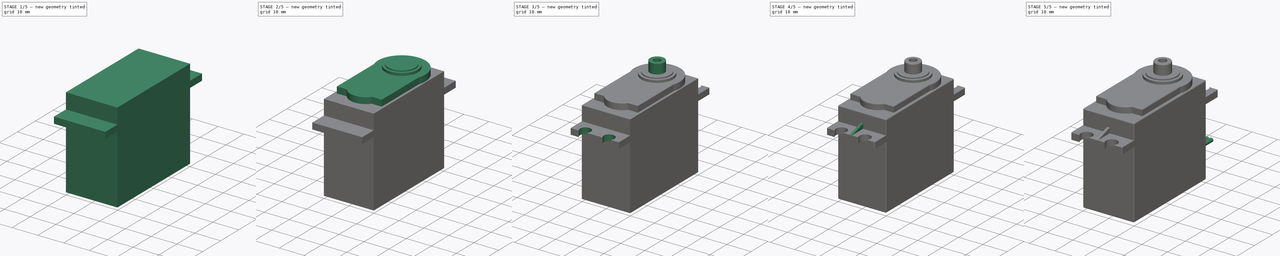
[diagram: build sequence overview — one tinted view per stage of 5, left to right]
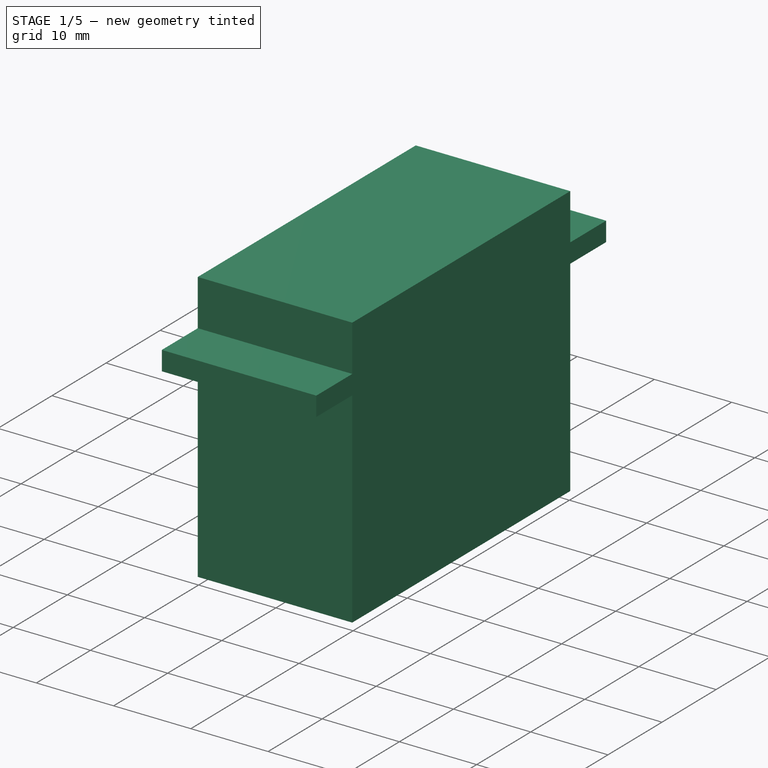
[diagram: stage 1 of 5 — iso view after this stage's code; geometry added in this stage tinted green]
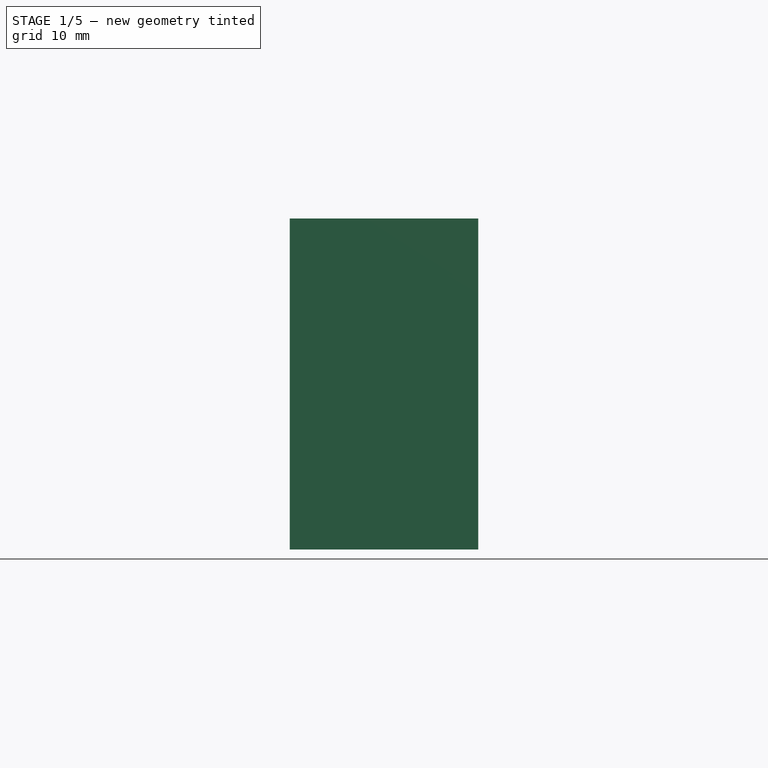
[diagram: stage 1 of 5 — front view after this stage's code; geometry added in this stage tinted green]
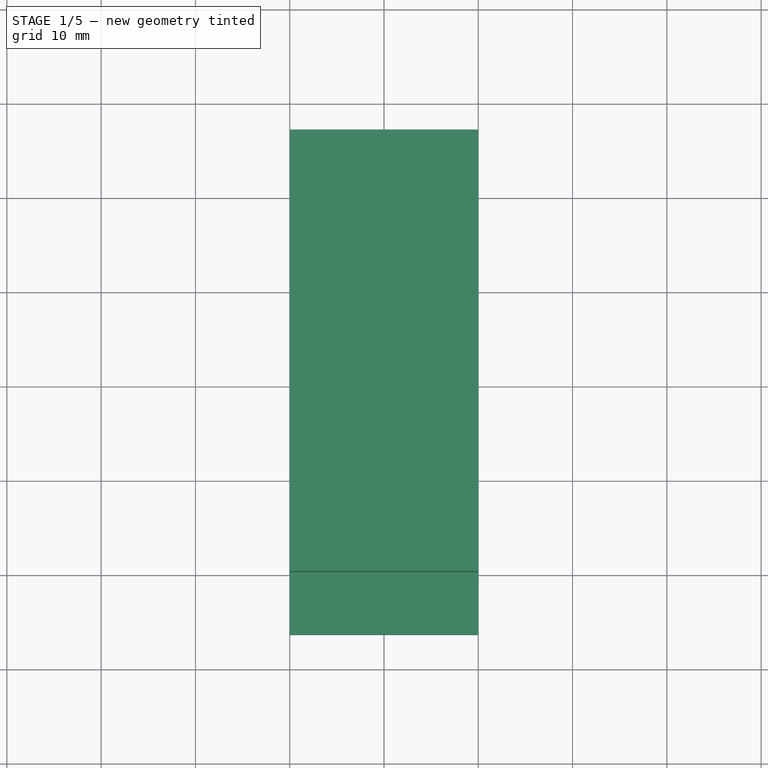
[diagram: stage 1 of 5 — top view after this stage's code; geometry added in this stage tinted green]
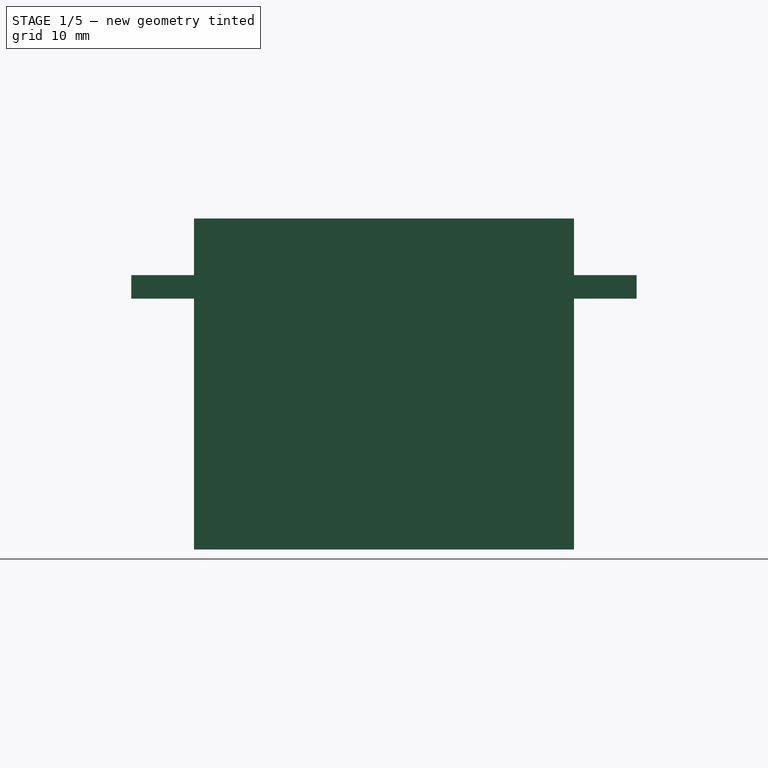
[diagram: stage 1 of 5 — right view after this stage's code; geometry added in this stage tinted green]
FCSTD DOCUMENT  (FreeCAD 0.18R4 (GitTag))
Label: MG996R
License: CreativeCommons Attribution-NonCommercial
LicenseURL: http://creativecommons.org/licenses/by-nc/4.0/
objects: Sketcher::SketchObject×15, PartDesign::Pad×11, PartDesign::Pocket×3, PartDesign::Fillet×1, PartDesign::Body×1
note: 45 computed .brp shape members not serialized (recipe doc carries the construction recipe); baked Part::Feature solids carry a one-line shape summary decoded from their .brp

FEATURE [Sketcher::SketchObject] Sketch
  MapMode = 5
  Support = -> [XY_Plane]
  sketch-geometry (4):
    g0: LineSegment StartX=-10 StartY=20.15 StartZ=0 EndX=10 EndY=20.15 EndZ=0
    g1: LineSegment StartX=10 StartY=20.15 StartZ=0 EndX=10 EndY=-20.15 EndZ=0
    g2: LineSegment StartX=10 StartY=-20.15 StartZ=0 EndX=-10 EndY=-20.15 EndZ=0
    g3: LineSegment StartX=-10 StartY=-20.15 StartZ=0 EndX=-10 EndY=20.15 EndZ=0
  constraints (10):
    c: Coincident(g0,g1)
    c: Coincident(g1,g2)
    c: Coincident(g2,g3)
    c: Coincident(g3,g0)
    c: Horizontal(g2)
    c: Vertical(g3)
    c: DistanceX(g0,g0) = 20
    c: DistanceY(g1,g1) = 40.3
    c: Symmetric(g0,g1,g-1)
    c: Symmetric(g0,g0,g-2)
FEATURE [PartDesign::Pad] Pad  label="Baseblock"
  Length = 26.6
  Length2 = 100
  Profile = -> Sketch
  Type = 0
FEATURE [Sketcher::SketchObject] Sketch001
  MapMode = 5
  Placement = pos=(0,0,26.6) rot=(0,0,1;0rad)
  Support = -> [Pad]
  sketch-geometry (4):
    g0: LineSegment StartX=-10 StartY=-26.8 StartZ=0 EndX=10 EndY=-26.8 EndZ=0
    g1: LineSegment StartX=10 StartY=-26.8 StartZ=0 EndX=10 EndY=26.8 EndZ=0
    g2: LineSegment StartX=10 StartY=26.8 StartZ=0 EndX=-10 EndY=26.8 EndZ=0
    g3: LineSegment StartX=-10 StartY=26.8 StartZ=0 EndX=-10 EndY=-26.8 EndZ=0
  constraints (10):
    c: Coincident(g0,g1)
    c: Coincident(g1,g2)
    c: Coincident(g2,g3)
    c: Coincident(g3,g0)
    c: Horizontal(g0)
    c: Vertical(g3)
    c: Symmetric(g1,g2,g-2)
    c: Symmetric(g1,g0,g-1)
    c: DistanceX(g2,g2) = 20
    c: DistanceY(g1,g1) = 53.6
FEATURE [PartDesign::Pad] Pad001
  BaseFeature = -> Pad
  Length = 2.5
  Length2 = 100
  Profile = -> Sketch001
  Type = 0
FEATURE [Sketcher::SketchObject] Sketch002
  MapMode = 5
  Placement = pos=(0,0,29.1) rot=(0,0,1;0rad)
  Support = -> [Pad001]
  sketch-geometry (4):
    g0: LineSegment StartX=-10 StartY=-20.15 StartZ=0 EndX=10 EndY=-20.15 EndZ=0
    g1: LineSegment StartX=10 StartY=-20.15 StartZ=0 EndX=10 EndY=20.15 EndZ=0
    g2: LineSegment StartX=10 StartY=20.15 StartZ=0 EndX=-10 EndY=20.15 EndZ=0
    g3: LineSegment StartX=-10 StartY=20.15 StartZ=0 EndX=-10 EndY=-20.15 EndZ=0
  constraints (10):
    c: Coincident(g0,g1)
    c: Coincident(g1,g2)
    c: Coincident(g2,g3)
    c: Coincident(g3,g0)
    c: Horizontal(g0)
    c: Vertical(g3)
    c: Symmetric(g1,g2,g-2)
    c: Symmetric(g1,g0,g-1)
    c: DistanceX(g2,g2) = 20
    c: DistanceY(g1,g1) = 40.3
FEATURE [PartDesign::Pad] Pad002
  BaseFeature = -> Pad001
  Length = 6
  Length2 = 100
  Profile = -> Sketch002
  Type = 0
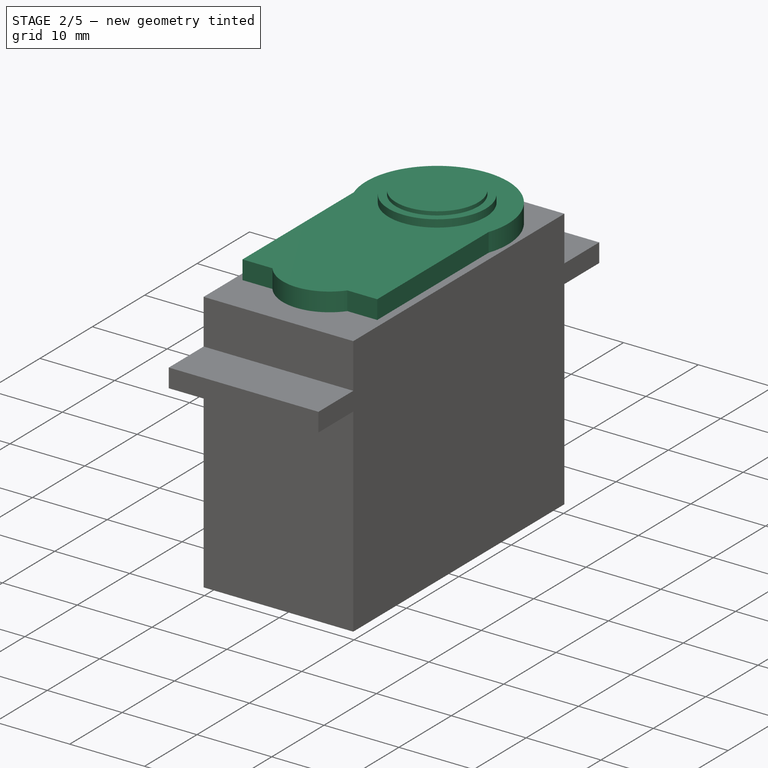
[diagram: stage 2 of 5 — iso view after this stage's code; geometry added in this stage tinted green]
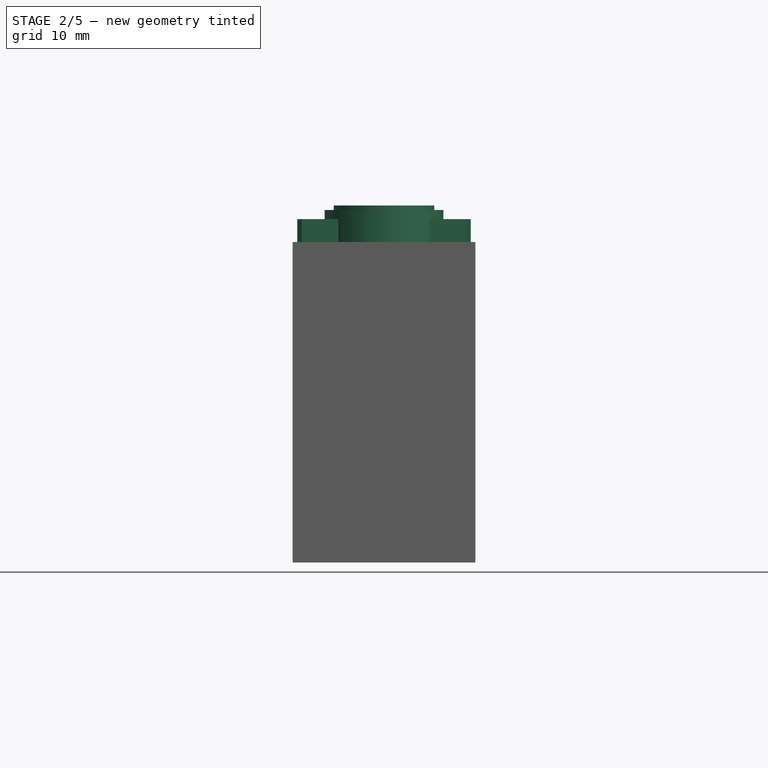
[diagram: stage 2 of 5 — front view after this stage's code; geometry added in this stage tinted green]
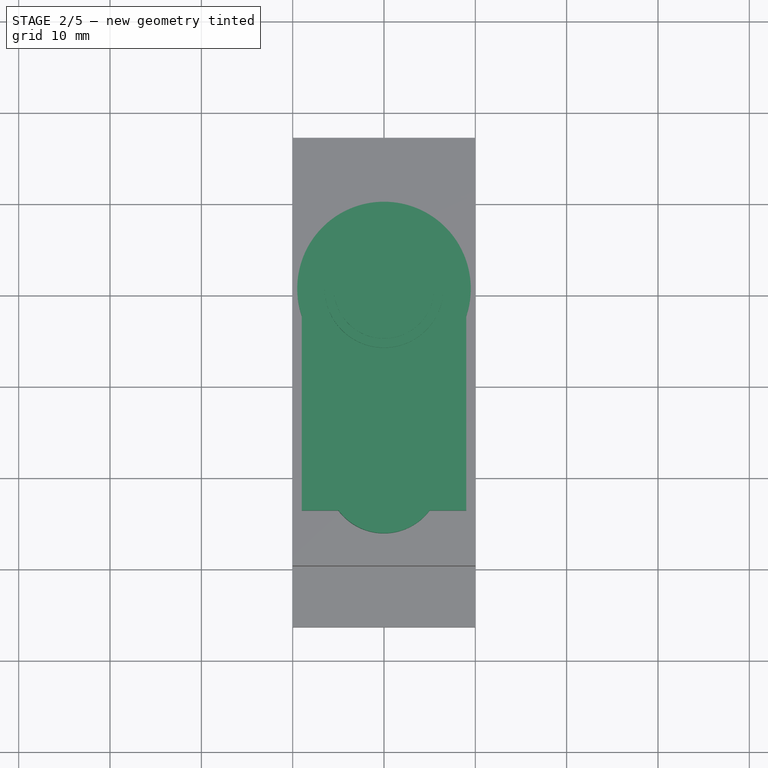
[diagram: stage 2 of 5 — top view after this stage's code; geometry added in this stage tinted green]
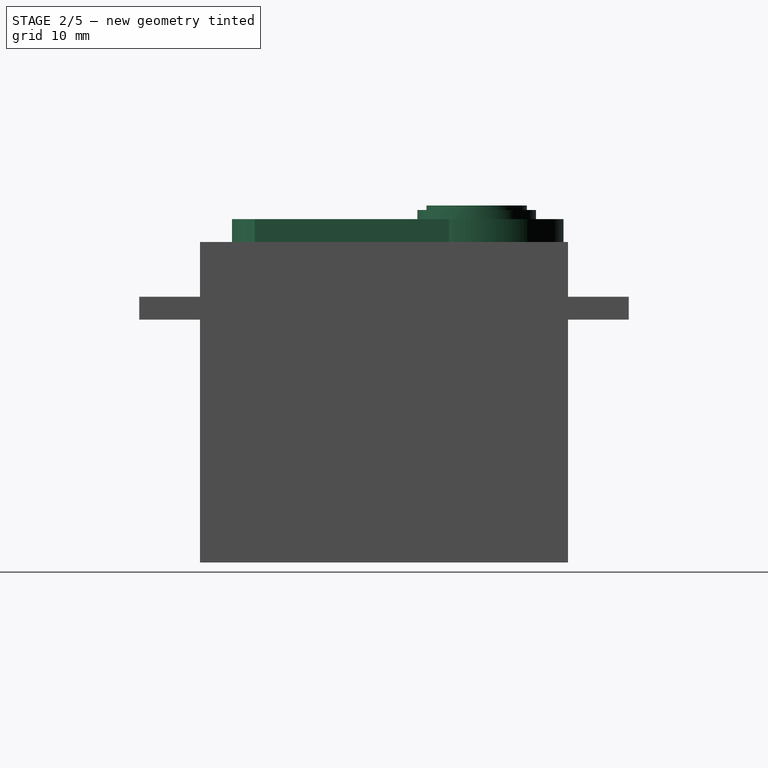
[diagram: stage 2 of 5 — right view after this stage's code; geometry added in this stage tinted green]
FEATURE [Sketcher::SketchObject] Sketch003
  ExternalGeometry = -> [Pad002]
  MapMode = 5
  Placement = pos=(0,0,35.1) rot=(0,0,1;0rad)
  Support = -> [Pad002]
  sketch-geometry (7):
    g0: ArcOfCircle CenterX=-3e-16 CenterY=10.15 CenterZ=0 NormalX=0 NormalY=0 NormalZ=1 AngleXU=0 Radius=9.5 StartAngle=5.9573 EndAngle=9.75066
    g1: LineSegment StartX=-9 StartY=7.10862 StartZ=0 EndX=-9 EndY=-14.15 EndZ=0
    g2: LineSegment StartX=-9 StartY=-14.15 StartZ=0 EndX=-5 EndY=-14.15 EndZ=0
    g3: LineSegment StartX=5 StartY=-14.15 StartZ=0 EndX=9 EndY=-14.15 EndZ=0
    g4: LineSegment StartX=9 StartY=-14.15 StartZ=0 EndX=9 EndY=7.10862 EndZ=0
    g5: ArcOfCircle CenterX=-3e-16 CenterY=-10.4 CenterZ=0 NormalX=0 NormalY=0 NormalZ=1 AngleXU=0 Radius=6.25 StartAngle=3.78509 EndAngle=5.63968
    g6: LineSegment [constr] StartX=0 StartY=-20.15 StartZ=0 EndX=0 EndY=-16.65 EndZ=0
  constraints (22):
    c: Symmetric(g0,g0,g-2)
    c: Coincident(g1,g0)
    c: Vertical(g1)
    c: Coincident(g2,g1)
    c: Horizontal(g2)
    c: Horizontal(g3)
    c: Coincident(g4,g3)
    c: Coincident(g4,g0)
    c: Vertical(g4)
    c: Symmetric(g2,g3,g-2)
    c: Coincident(g5,g2)
    c: Coincident(g5,g3)
    c: DistanceY(g-3,g3) = 6
    c: DistanceY(g0,g-4) = 10
    c: Radius(g0) = 9.5
    c: DistanceX(g0,g0) = 18
    c: PointOnObject(g6,g-3)
    c: PointOnObject(g6,g5)
    c: Vertical(g6)
    c: DistanceY(g6,g6) = 3.5
    c: DistanceX(g2,g3) = 10
    c: PointOnObject(g6,g-2)
FEATURE [PartDesign::Pad] Pad003
  BaseFeature = -> Pad002
  Length = 2.5
  Length2 = 100
  Profile = -> Sketch003
  Type = 0
FEATURE [Sketcher::SketchObject] Sketch004
  ExternalGeometry = -> [Pad003]
  MapMode = 5
  Placement = pos=(0,0,37.6) rot=(0,0,1;0rad)
  Support = -> [Pad003]
  sketch-geometry (1):
    g0: Circle CenterX=-3e-16 CenterY=10.15 CenterZ=0 NormalX=0 NormalY=0 NormalZ=1 AngleXU=0 Radius=6.5
  constraints (2):
    c: Coincident(g0,g-3)
    c: Radius(g0) = 6.5
FEATURE [PartDesign::Pad] Pad004
  BaseFeature = -> Pad003
  Length = 1
  Length2 = 100
  Profile = -> Sketch004
  Type = 0
FEATURE [Sketcher::SketchObject] Sketch005
  ExternalGeometry = -> [Pad004]
  MapMode = 5
  Placement = pos=(0,0,38.6) rot=(0,0,1;0rad)
  Support = -> [Pad004]
  sketch-geometry (1):
    g0: Circle CenterX=0 CenterY=10.15 CenterZ=0 NormalX=0 NormalY=0 NormalZ=1 AngleXU=0 Radius=5.5
  constraints (2):
    c: Coincident(g0,g-3)
    c: Radius(g0) = 5.5
FEATURE [PartDesign::Pad] Pad005
  BaseFeature = -> Pad004
  Length = 0.5
  Length2 = 100
  Profile = -> Sketch005
  Type = 0
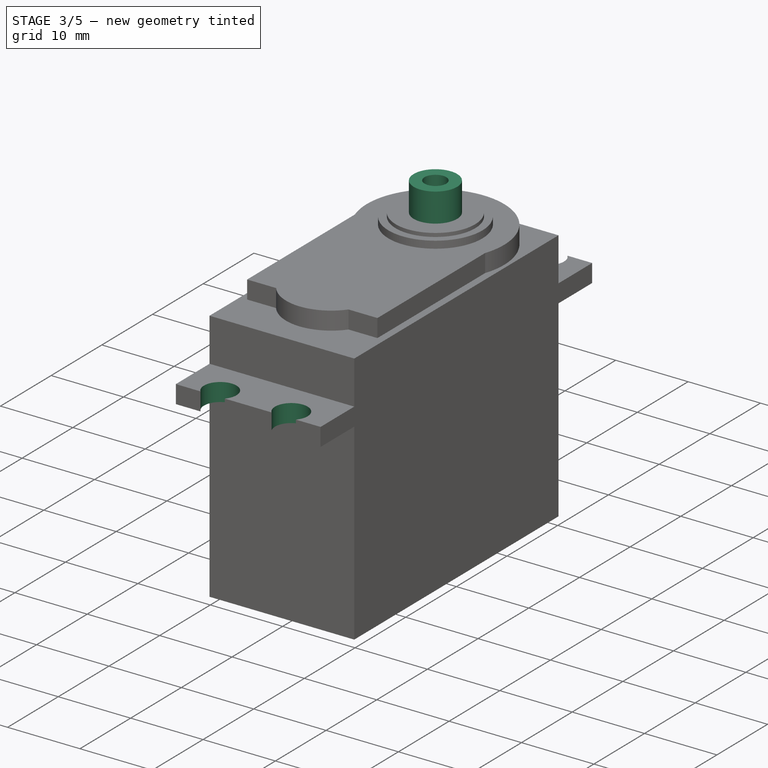
[diagram: stage 3 of 5 — iso view after this stage's code; geometry added in this stage tinted green]
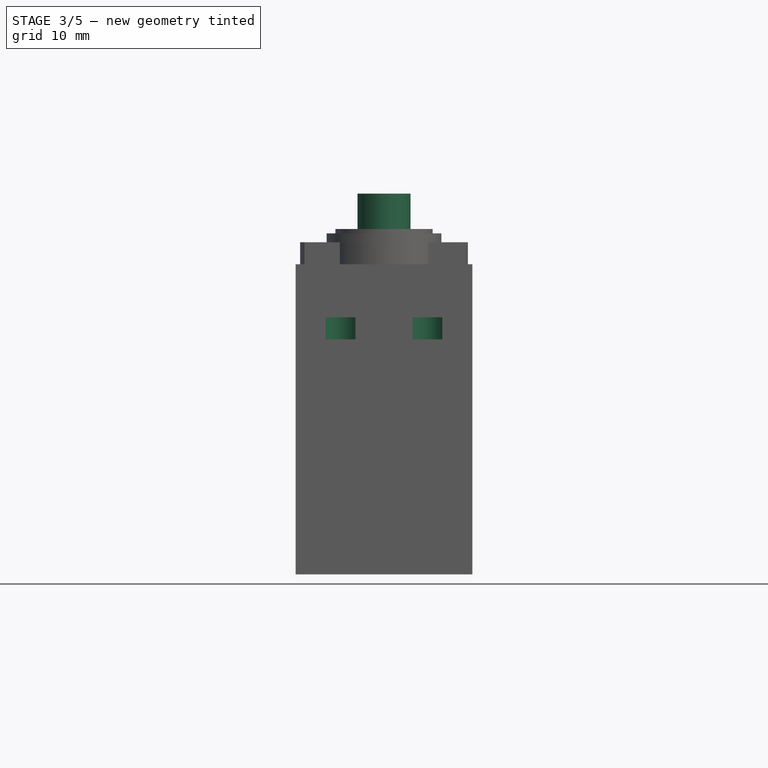
[diagram: stage 3 of 5 — front view after this stage's code; geometry added in this stage tinted green]
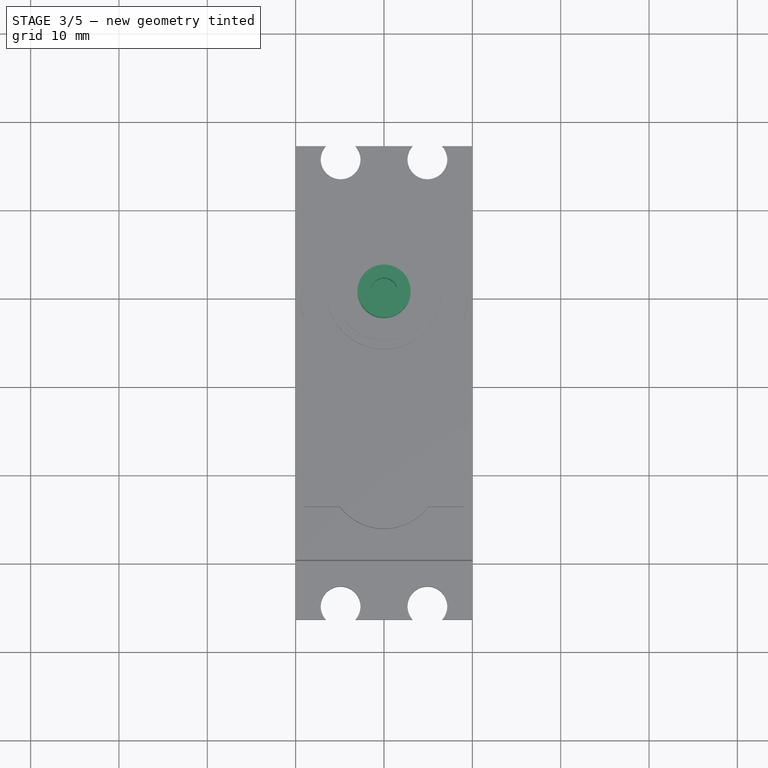
[diagram: stage 3 of 5 — top view after this stage's code; geometry added in this stage tinted green]
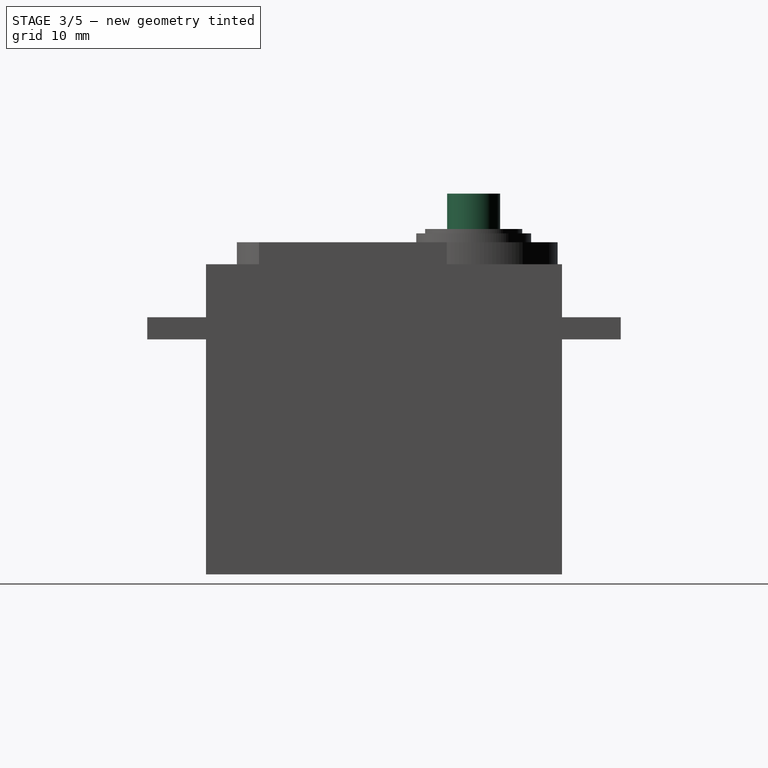
[diagram: stage 3 of 5 — right view after this stage's code; geometry added in this stage tinted green]
FEATURE [Sketcher::SketchObject] Sketch006
  ExternalGeometry = -> [Pad005]
  MapMode = 5
  Placement = pos=(0,0,39.1) rot=(0,0,1;0rad)
  Support = -> [Pad005]
  sketch-geometry (1):
    g0: Circle CenterX=0 CenterY=10.15 CenterZ=0 NormalX=0 NormalY=0 NormalZ=1 AngleXU=0 Radius=3
  constraints (2):
    c: Coincident(g0,g-3)
    c: Radius(g0) = 3
FEATURE [PartDesign::Pad] Pad006
  BaseFeature = -> Pad005
  Length = 4
  Length2 = 100
  Profile = -> Sketch006
  Type = 0
FEATURE [Sketcher::SketchObject] Sketch007
  ExternalGeometry = -> [Pad006]
  MapMode = 5
  Placement = pos=(0,0,43.1) rot=(0,0,1;0rad)
  Support = -> [Pad006]
  sketch-geometry (1):
    g0: Circle CenterX=0 CenterY=10.15 CenterZ=0 NormalX=0 NormalY=0 NormalZ=1 AngleXU=0 Radius=1.5
  constraints (2):
    c: Coincident(g0,g-3)
    c: Radius(g0) = 1.5
FEATURE [PartDesign::Pocket] Pocket
  BaseFeature = -> Pad006
  Length = 5
  Length2 = 100
  Profile = -> Sketch007
  Type = 0
FEATURE [Sketcher::SketchObject] Sketch008
  MapMode = 5
  Placement = pos=(0,0,29.1) rot=(0,0,1;0rad)
  Support = -> [Pocket]
  sketch-geometry (4):
    g0: Circle CenterX=-4.91157 CenterY=25.3 CenterZ=0 NormalX=0 NormalY=0 NormalZ=1 AngleXU=0 Radius=2.25
    g1: Circle CenterX=4.91157 CenterY=25.3 CenterZ=0 NormalX=0 NormalY=0 NormalZ=1 AngleXU=0 Radius=2.25
    g2: Circle CenterX=-4.91157 CenterY=-25.3 CenterZ=0 NormalX=0 NormalY=0 NormalZ=1 AngleXU=0 Radius=2.25
    g3: Circle CenterX=4.91157 CenterY=-25.3 CenterZ=0 NormalX=0 NormalY=0 NormalZ=1 AngleXU=0 Radius=2.25
  constraints (8):
    c: Equal(g3,g2)
    c: Equal(g2,g1)
    c: Equal(g1,g0)
    c: Radius(g1) = 2.25
    c: Symmetric(g1,g0,g-2)
    c: Symmetric(g3,g2,g-2)
    c: Symmetric(g3,g1,g-1)
    c: DistanceY(g3,g1) = 50.6
FEATURE [PartDesign::Pocket] Pocket001
  BaseFeature = -> Pocket
  Length = 5
  Length2 = 100
  Profile = -> Sketch008
  Type = 0
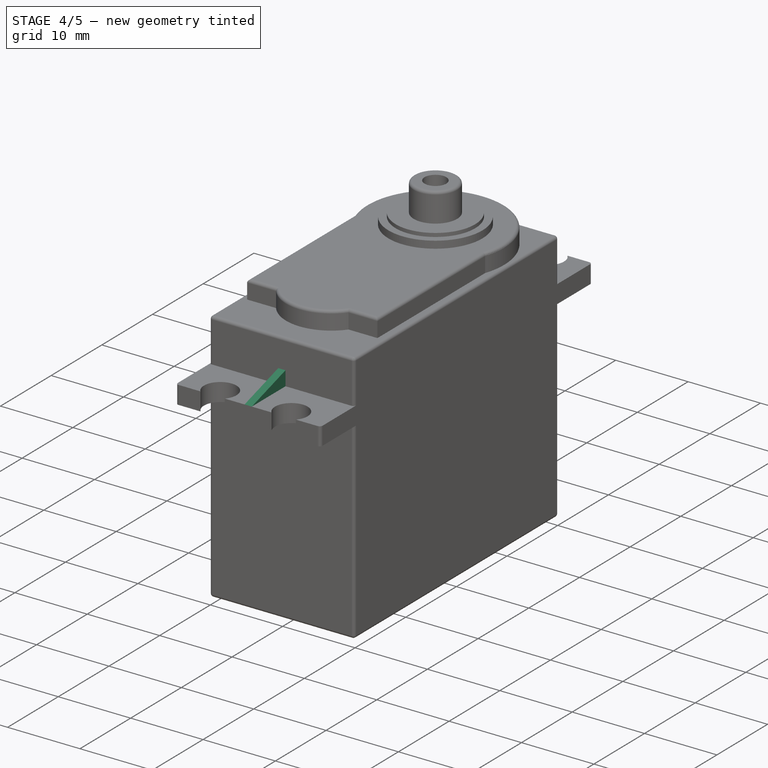
[diagram: stage 4 of 5 — iso view after this stage's code; geometry added in this stage tinted green]
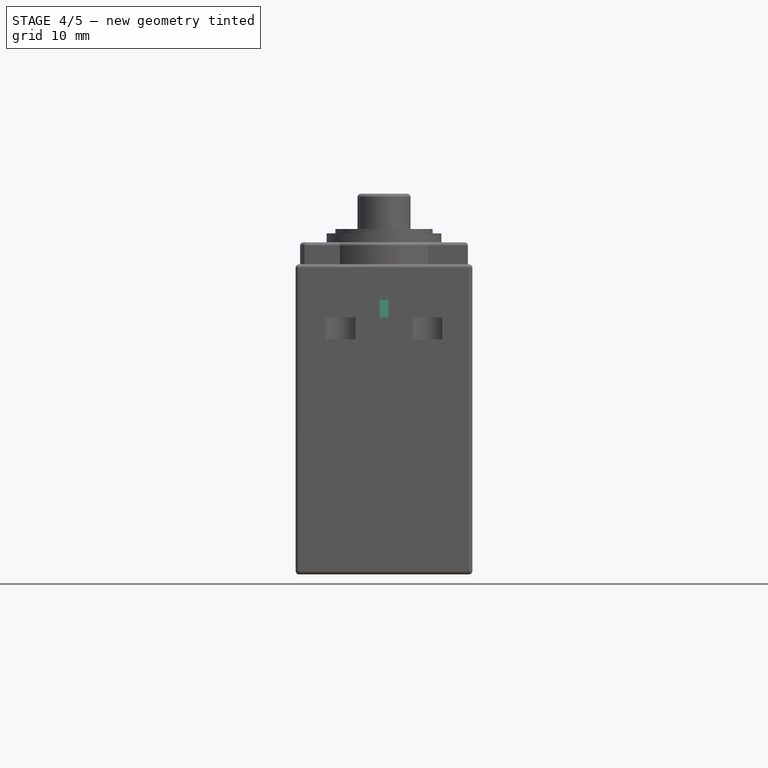
[diagram: stage 4 of 5 — front view after this stage's code; geometry added in this stage tinted green]
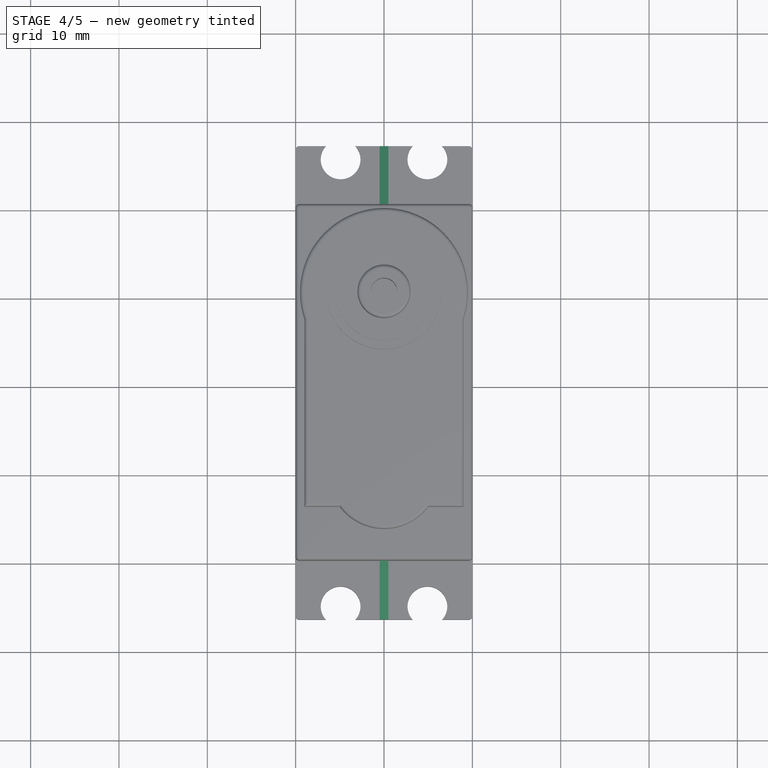
[diagram: stage 4 of 5 — top view after this stage's code; geometry added in this stage tinted green]
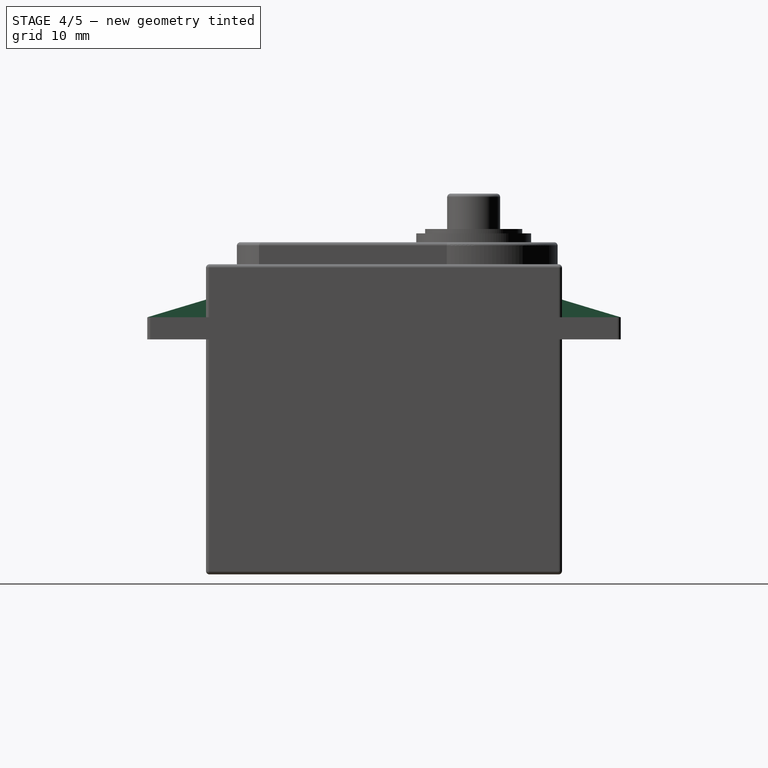
[diagram: stage 4 of 5 — right view after this stage's code; geometry added in this stage tinted green]
FEATURE [Sketcher::SketchObject] Sketch009
  MapMode = 5
  Placement = pos=(0,0,29.1) rot=(0,0,1;0rad)
  Support = -> [Pocket001]
  sketch-geometry (8):
    g0: LineSegment StartX=-0.5 StartY=26.8 StartZ=0 EndX=0.5 EndY=26.8 EndZ=0
    g1: LineSegment StartX=0.5 StartY=26.8 StartZ=0 EndX=0.5 EndY=20.15 EndZ=0
    g2: LineSegment StartX=0.5 StartY=20.15 StartZ=0 EndX=-0.5 EndY=20.15 EndZ=0
    g3: LineSegment StartX=-0.5 StartY=20.15 StartZ=0 EndX=-0.5 EndY=26.8 EndZ=0
    g4: LineSegment StartX=-0.5 StartY=-20.15 StartZ=0 EndX=0.5 EndY=-20.15 EndZ=0
    g5: LineSegment StartX=0.5 StartY=-20.15 StartZ=0 EndX=0.5 EndY=-26.8 EndZ=0
    g6: LineSegment StartX=0.5 StartY=-26.8 StartZ=0 EndX=-0.5 EndY=-26.8 EndZ=0
    g7: LineSegment StartX=-0.5 StartY=-26.8 StartZ=0 EndX=-0.5 EndY=-20.15 EndZ=0
  constraints (20):
    c: Coincident(g0,g1)
    c: Coincident(g1,g2)
    c: Coincident(g2,g3)
    c: Coincident(g3,g0)
    c: Horizontal(g2)
    c: Vertical(g1)
    c: Vertical(g3)
    c: Coincident(g4,g5)
    c: Coincident(g5,g6)
    c: Coincident(g6,g7)
    c: Coincident(g7,g4)
    c: Horizontal(g6)
    c: Vertical(g7)
    c: Symmetric(g4,g4,g-2)
    c: Symmetric(g0,g0,g-2)
    c: Symmetric(g0,g5,g-1)
    c: DistanceY(g5,g0) = 53.6
    c: DistanceY(g4,g1) = 40.3
    c: DistanceX(g0,g0) = 1
    c: Symmetric(g4,g1,g-1)
FEATURE [PartDesign::Pad] Pad007
  BaseFeature = -> Pocket001
  Length = 2
  Length2 = 100
  Profile = -> Sketch009
  Type = 0
FEATURE [Sketcher::SketchObject] Sketch010
  ExternalGeometry = -> [Pad007]
  MapMode = 5
  Placement = pos=(0.5,0,0) rot=(0.57735,0.57735,0.57735;2.0944rad)
  Support = -> [Pad007]
  sketch-geometry (6):
    g0: LineSegment StartX=-26.8 StartY=29.1 StartZ=0 EndX=-26.8 EndY=31.1 EndZ=0
    g1: LineSegment StartX=-26.8 StartY=31.1 StartZ=0 EndX=-20.15 EndY=31.1 EndZ=0
    g2: LineSegment StartX=-20.15 StartY=31.1 StartZ=0 EndX=-26.8 EndY=29.1 EndZ=0
    g3: LineSegment StartX=20.15 StartY=31.1 StartZ=0 EndX=26.8 EndY=31.1 EndZ=0
    g4: LineSegment StartX=26.8 StartY=31.1 StartZ=0 EndX=26.8 EndY=29.1 EndZ=0
    g5: LineSegment StartX=26.8 StartY=29.1 StartZ=0 EndX=20.15 EndY=31.1 EndZ=0
  constraints (14):
    c: Vertical(g0)
    c: Coincident(g0,g1)
    c: Horizontal(g1)
    c: Coincident(g1,g2)
    c: Coincident(g2,g0)
    c: Coincident(g3,g4)
    c: Coincident(g4,g5)
    c: Coincident(g5,g3)
    c: Symmetric(g0,g4,g-2)
    c: Symmetric(g3,g0,g-2)
    c: Symmetric(g1,g3,g-2)
    c: DistanceX(g0,g3) = 53.6
    c: DistanceY(g4,g4) = 2
    c: Coincident(g3,g-3)
FEATURE [PartDesign::Pocket] Pocket002
  BaseFeature = -> Pad007
  Length = 1
  Length2 = 100
  Profile = -> Sketch010
  Type = 0
FEATURE [PartDesign::Fillet] Fillet
  Base = -> Pocket002 [Edge26,Edge27,Edge72,Edge63,Edge70,Edge78,Edge51,Edge49,Edge71,Edge50,Edge79,Edge86,Edge30,Edge21,Edge4,Edge29,Edge105,Edge107,Edge109,Edge111,Edge113,Edge114,Edge123,Face21]
  BaseFeature = -> Pocket002
  Radius = 0.4
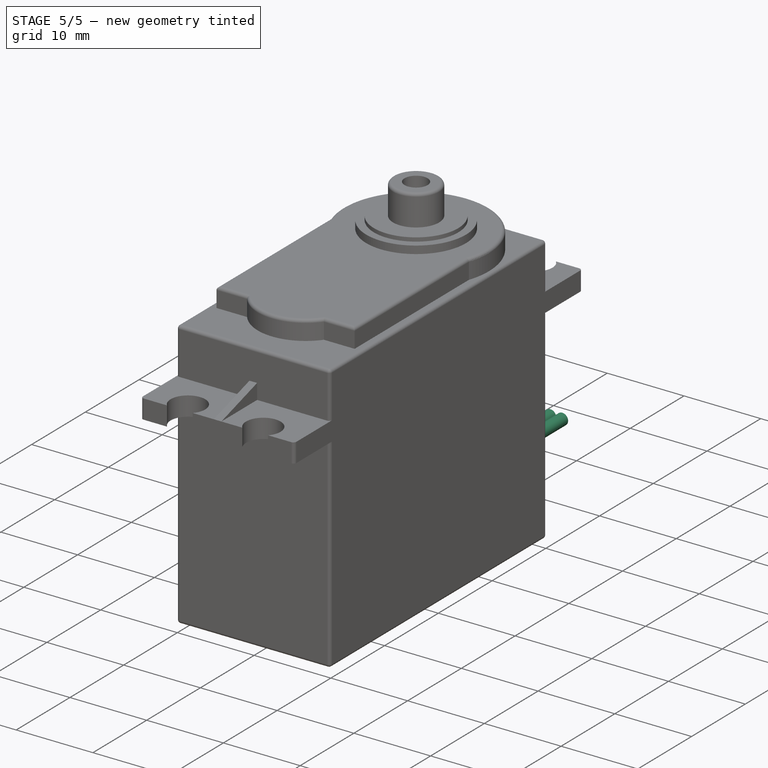
[diagram: stage 5 of 5 — iso view after this stage's code; geometry added in this stage tinted green]
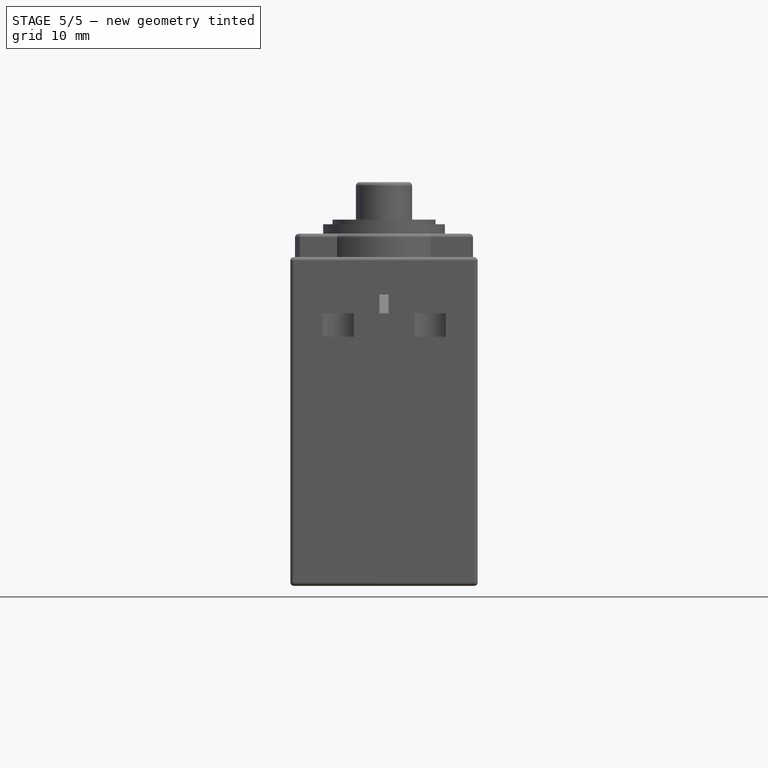
[diagram: stage 5 of 5 — front view after this stage's code; geometry added in this stage tinted green]
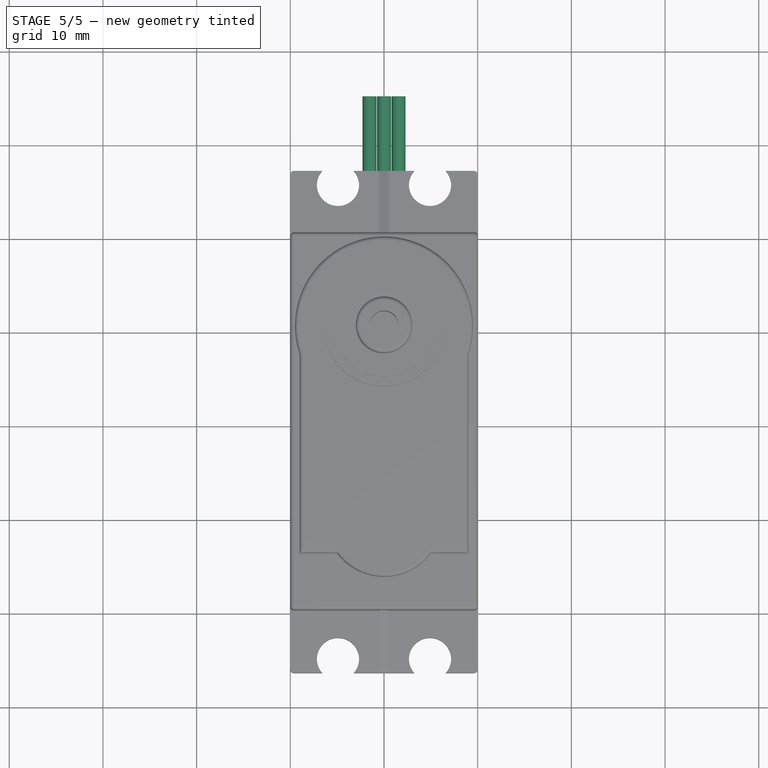
[diagram: stage 5 of 5 — top view after this stage's code; geometry added in this stage tinted green]
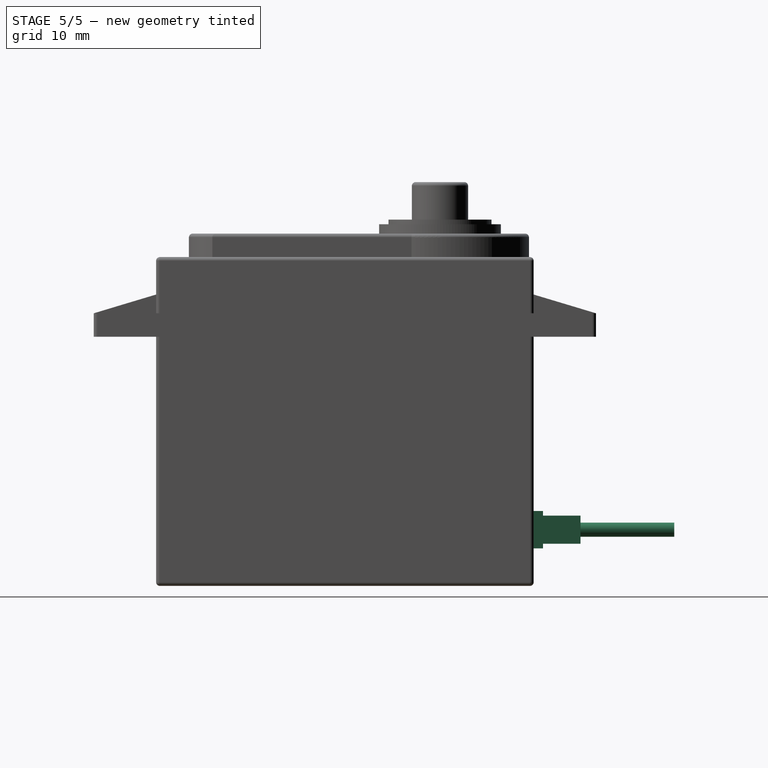
[diagram: stage 5 of 5 — right view after this stage's code; geometry added in this stage tinted green]
FEATURE [Sketcher::SketchObject] Sketch011
  MapMode = 5
  Placement = pos=(0,20.15,0) rot=(0,0.707107,0.707107;3.14159rad)
  Support = -> [Fillet]
  sketch-geometry (4):
    g0: LineSegment StartX=-3.25 StartY=4 StartZ=0 EndX=3.25 EndY=4 EndZ=0
    g1: LineSegment StartX=3.25 StartY=4 StartZ=0 EndX=3.25 EndY=8 EndZ=0
    g2: LineSegment StartX=3.25 StartY=8 StartZ=0 EndX=-3.25 EndY=8 EndZ=0
    g3: LineSegment StartX=-3.25 StartY=8 StartZ=0 EndX=-3.25 EndY=4 EndZ=0
  constraints (11):
    c: Coincident(g0,g1)
    c: Coincident(g1,g2)
    c: Coincident(g2,g3)
    c: Coincident(g3,g0)
    c: Horizontal(g0)
    c: Vertical(g1)
    c: Vertical(g3)
    c: DistanceY(g-1,g0) = 4
    c: DistanceY(g1,g1) = 4
    c: Symmetric(g2,g1,g-2)
    c: DistanceX(g2,g2) = 6.5
FEATURE [PartDesign::Pad] Pad008
  BaseFeature = -> Fillet
  Length = 1
  Length2 = 100
  Profile = -> Sketch011
  Type = 0
FEATURE [Sketcher::SketchObject] Sketch012
  ExternalGeometry = -> [Pad008]
  MapMode = 5
  Placement = pos=(0,21.15,0) rot=(0,0.707107,0.707107;3.14159rad)
  Support = -> [Pad008]
  sketch-geometry (4):
    g0: LineSegment StartX=-2.75 StartY=4.5 StartZ=0 EndX=2.75 EndY=4.5 EndZ=0
    g1: LineSegment StartX=2.75 StartY=4.5 StartZ=0 EndX=2.75 EndY=7.5 EndZ=0
    g2: LineSegment StartX=2.75 StartY=7.5 StartZ=0 EndX=-2.75 EndY=7.5 EndZ=0
    g3: LineSegment StartX=-2.75 StartY=7.5 StartZ=0 EndX=-2.75 EndY=4.5 EndZ=0
  constraints (11):
    c: Coincident(g0,g1)
    c: Coincident(g1,g2)
    c: Coincident(g2,g3)
    c: Coincident(g3,g0)
    c: Horizontal(g0)
    c: Vertical(g1)
    c: Vertical(g3)
    c: Symmetric(g1,g2,g-2)
    c: DistanceY(g1,g-4) = 0.5
    c: DistanceY(g-4,g0) = 0.5
    c: DistanceX(g1,g-4) = 0.5
FEATURE [PartDesign::Pad] Pad009
  BaseFeature = -> Pad008
  Length = 4
  Length2 = 100
  Profile = -> Sketch012
  Type = 0
FEATURE [Sketcher::SketchObject] Sketch013
  ExternalGeometry = -> [Pad009]
  MapMode = 5
  Placement = pos=(0,25.15,0) rot=(0,0.707107,0.707107;3.14159rad)
  Support = -> [Pad009]
  sketch-geometry (4):
    g0: Circle CenterX=-1.55 CenterY=6 CenterZ=0 NormalX=0 NormalY=0 NormalZ=1 AngleXU=0 Radius=0.75
    g1: Circle CenterX=0 CenterY=6 CenterZ=0 NormalX=0 NormalY=0 NormalZ=1 AngleXU=0 Radius=0.75
    g2: Circle CenterX=1.55 CenterY=6 CenterZ=0 NormalX=0 NormalY=0 NormalZ=1 AngleXU=0 Radius=0.75
    g3: LineSegment [constr] StartX=-1.55 StartY=6 StartZ=0 EndX=-2.75 EndY=6 EndZ=0
  constraints (10):
    c: PointOnObject(g1,g-2)
    c: Horizontal(g0,g1)
    c: Equal(g0,g1)
    c: Equal(g1,g2)
    c: Radius(g2) = 0.75
    c: Symmetric(g0,g2,g1)
    c: Coincident(g3,g0)
    c: Horizontal(g3)
    c: Symmetric(g-3,g-3,g3)
    c: DistanceX(g0,g1) = 1.55
FEATURE [PartDesign::Pad] Pad010
  BaseFeature = -> Pad009
  Length = 10
  Length2 = 100
  Profile = -> Sketch013
  Type = 0
FEATURE [Sketcher::SketchObject] Sketch014
  MapMode = 5
  Placement = pos=(0,0,37.6) rot=(0,0,1;0rad)
  Support = -> [Pad010]
FEATURE [PartDesign::Body] Body  label="MG996R"
  Group = -> [Sketch,Pad,Sketch001,Pad001,Sketch002,Pad002,Sketch003,Pad003,Sketch004,Pad004,Sketch005,Pad005,Sketch006,Pad006,Sketch007,Pocket,Sketch008,Pocket001,Sketch009,Pad007,Sketch010,Pocket002,Fillet,Sketch011,Pad008,Sketch012,Pad009,Sketch013,Pad010,Sketch014]
  Origin = -> Origin
  Tip = -> Pad010
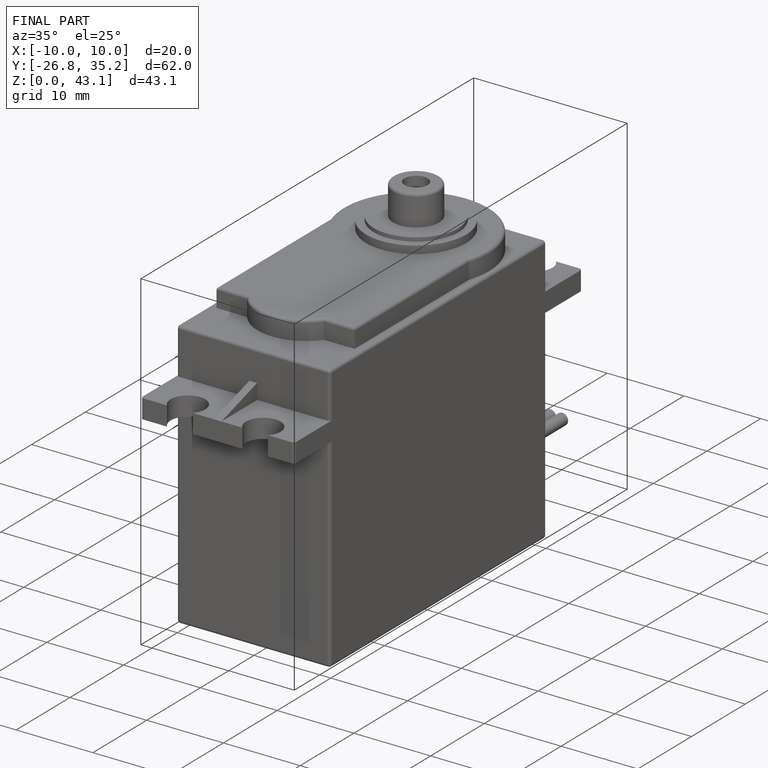
[diagram: finished part — iso view with bounding-box wireframe]
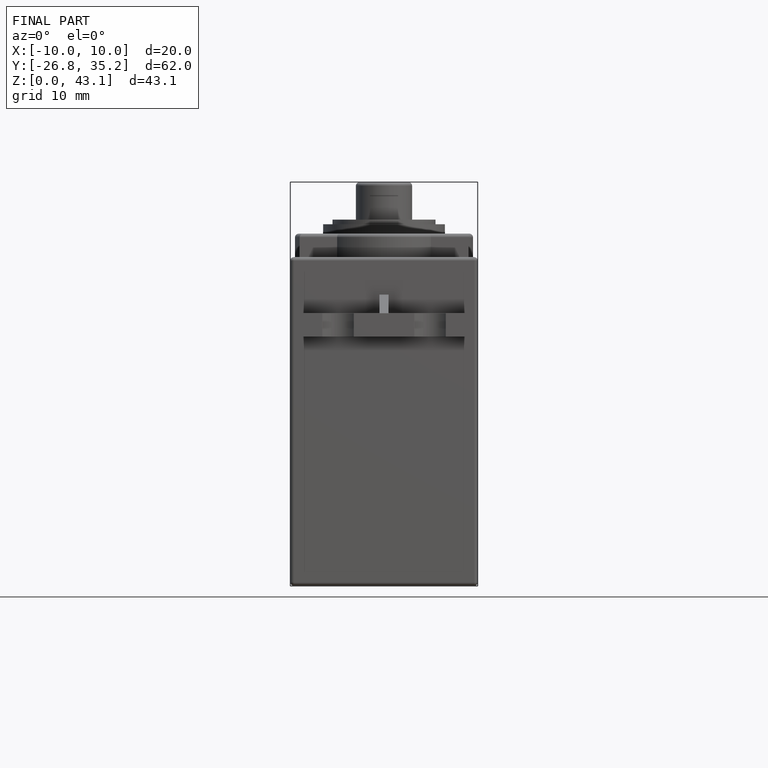
[diagram: finished part — front view with bounding-box wireframe]
